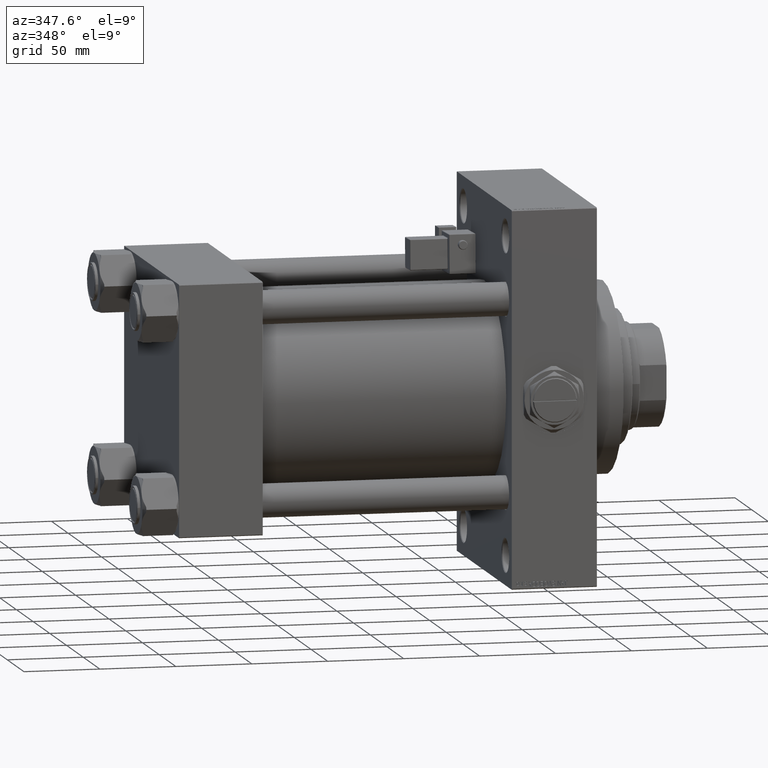
[diagram: clean part render]
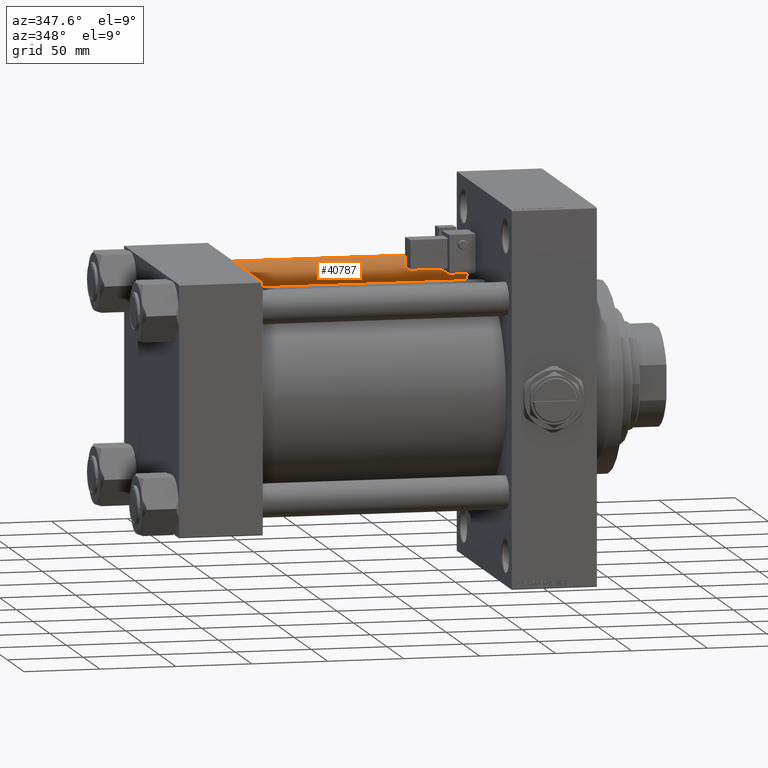
[diagram: same view with one face highlighted and labeled with its STEP entity id]
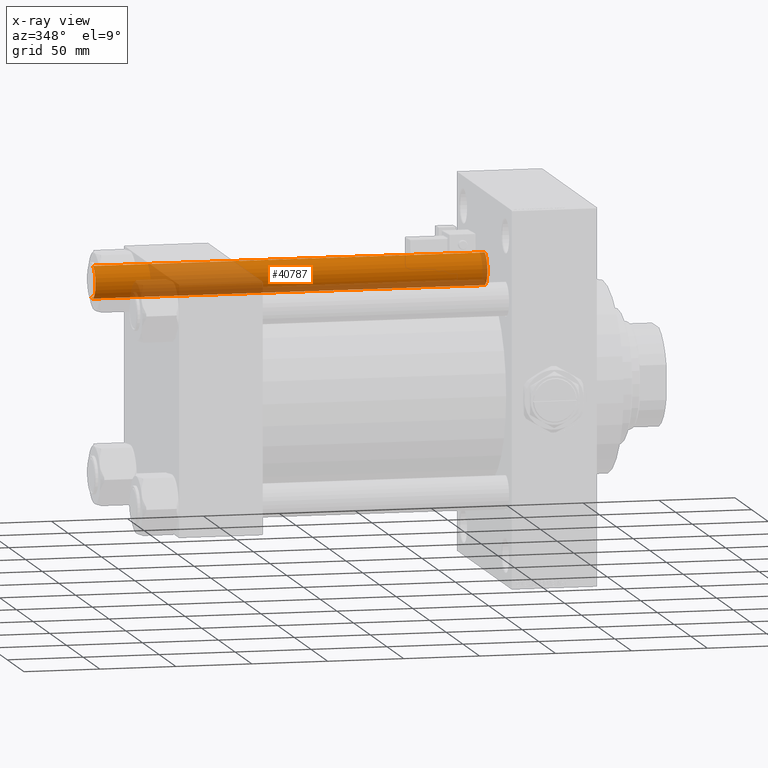
[diagram: x-ray of the same camera — body ghosted, the highlighted face saturated]
A machine part, auxiliary view. The second image highlights one B-rep face of the part: STEP entity #40787.
The next image is the same camera in x-ray: the body ghosted, the highlighted face saturated — about 40% of this face is hidden behind the body in this view.
In plain terms, the highlighted cylindrical surface (edge-blend (fillet) strip) has radius 11 mm, axis along (-1, -0, 0).
Its self-contained STEP definition (entity closure, byte-faithful):
#3301 = LINE ( 'NONE', #48088, #27720 ) ;
#4787 = CARTESIAN_POINT ( 'NONE',  ( -11.00000000000000000, 0.000000000000000000, 258.5000000000000568 ) ) ;
#5027 = EDGE_CURVE ( 'NONE', #37971, #26596, #9055, .T. ) ;
#7124 = DIRECTION ( 'NONE',  ( -0.000000000000000000, -0.000000000000000000, -1.000000000000000000 ) ) ;
#7453 = DIRECTION ( 'NONE',  ( 0.000000000000000000, 0.000000000000000000, -1.000000000000000000 ) ) ;
#9055 = CIRCLE ( 'NONE', #35744, 11.00000000000000000 ) ;
#9546 = CARTESIAN_POINT ( 'NONE',  ( 11.00000000000000000, 1.347111479062088405E-15, 0.5000000000000559552 ) ) ;
#10872 = DIRECTION ( 'NONE',  ( -0.000000000000000000, -0.000000000000000000, -1.000000000000000000 ) ) ;
#11139 = VECTOR ( 'NONE', #10872, 1000.000000000000000 ) ;
#12197 = CARTESIAN_POINT ( 'NONE',  ( -11.00000000000000000, 0.000000000000000000, 0.5000000000000559552 ) ) ;
#16073 = CIRCLE ( 'NONE', #31922, 11.00000000000000000 ) ;
#17657 = LINE ( 'NONE', #33592, #11139 ) ;
#18007 = EDGE_CURVE ( 'NONE', #26596, #45413, #17657, .T. ) ;
#18991 = EDGE_CURVE ( 'NONE', #37971, #51528, #3301, .T. ) ;
#19672 = ORIENTED_EDGE ( 'NONE', *, *, #28100, .T. ) ;
#24246 = DIRECTION ( 'NONE',  ( 1.000000000000000000, 0.000000000000000000, 0.000000000000000000 ) ) ;
#25269 = CARTESIAN_POINT ( 'NONE',  ( 0.000000000000000000, 0.000000000000000000, 0.5000000000000559552 ) ) ;
#26420 = AXIS2_PLACEMENT_3D ( 'NONE', #27498, #7124, #43380 ) ;
#26596 = VERTEX_POINT ( 'NONE', #4787 ) ;
#26686 = ORIENTED_EDGE ( 'NONE', *, *, #5027, .T. ) ;
#27498 = CARTESIAN_POINT ( 'NONE',  ( 0.000000000000000000, 0.000000000000000000, 259.0000000000000000 ) ) ;
#27720 = VECTOR ( 'NONE', #51480, 1000.000000000000000 ) ;
#28100 = EDGE_CURVE ( 'NONE', #45413, #51528, #16073, .T. ) ;
#28878 = EDGE_LOOP ( 'NONE', ( #29002, #26686, #48057, #19672 ) ) ;
#29002 = ORIENTED_EDGE ( 'NONE', *, *, #18991, .F. ) ;
#31922 = AXIS2_PLACEMENT_3D ( 'NONE', #25269, #44047, #24246 ) ;
#33592 = CARTESIAN_POINT ( 'NONE',  ( -11.00000000000000000, 0.000000000000000000, 259.0000000000000000 ) ) ;
#35744 = AXIS2_PLACEMENT_3D ( 'NONE', #43183, #7453, #37979 ) ;
#37971 = VERTEX_POINT ( 'NONE', #42223 ) ;
#37979 = DIRECTION ( 'NONE',  ( 1.000000000000000000, 0.000000000000000000, 0.000000000000000000 ) ) ;
#40787 = ADVANCED_FACE ( 'NONE', ( #47301 ), #50948, .T. ) ;
#42223 = CARTESIAN_POINT ( 'NONE',  ( 11.00000000000000000, 1.347111479062088405E-15, 258.5000000000000568 ) ) ;
#43183 = CARTESIAN_POINT ( 'NONE',  ( 0.000000000000000000, 0.000000000000000000, 258.5000000000000568 ) ) ;
#43380 = DIRECTION ( 'NONE',  ( -1.000000000000000000, 0.000000000000000000, 0.000000000000000000 ) ) ;
#44047 = DIRECTION ( 'NONE',  ( -0.000000000000000000, -0.000000000000000000, 1.000000000000000000 ) ) ;
#45413 = VERTEX_POINT ( 'NONE', #12197 ) ;
#47301 = FACE_OUTER_BOUND ( 'NONE', #28878, .T. ) ;
#48057 = ORIENTED_EDGE ( 'NONE', *, *, #18007, .T. ) ;
#48088 = CARTESIAN_POINT ( 'NONE',  ( 11.00000000000000000, 1.347111479062088405E-15, 259.0000000000000000 ) ) ;
#50948 = CYLINDRICAL_SURFACE ( 'NONE', #26420, 11.00000000000000000 ) ;
#51480 = DIRECTION ( 'NONE',  ( -0.000000000000000000, -0.000000000000000000, -1.000000000000000000 ) ) ;
#51528 = VERTEX_POINT ( 'NONE', #9546 ) ;